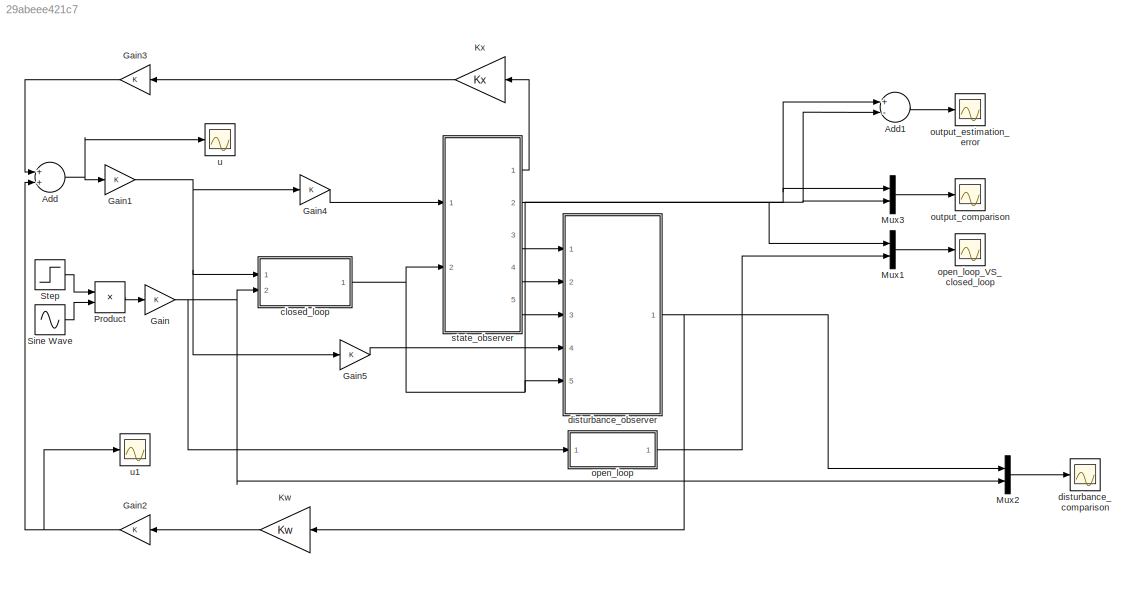
MODEL slx_29abeee421c7
KIND model
CONFIG AbsTol = auto
CONFIG FixedStep = 1e-4
CONFIG MaxStep = 1e-3
CONFIG MinStep = auto
CONFIG RelTol = 1e-3
CONFIG SampleTimeConstraint = Unconstrained
CONFIG Solver = ode45
CONFIG SolverMode = Auto
CONFIG SolverName = ode45
CONFIG StartTime = 0.0
CONFIG StopTime = 10
BLOCK [Sum] Add
  InputSameDT = off
  OutDataTypeStr = Inherit: Inherit via internal rule
  Ports = [2, 1]
  SaturateOnIntegerOverflow = off
BLOCK [Sum] Add1
  InputSameDT = off
  Inputs = +-
  OutDataTypeStr = Inherit: Inherit via internal rule
  Ports = [2, 1]
  SaturateOnIntegerOverflow = off
BLOCK [Gain] Gain
  OutDataTypeStr = Inherit: Inherit via internal rule
  ParamDataTypeStr = Inherit: Inherit via internal rule
  SaturateOnIntegerOverflow = off
BLOCK [Gain] Gain1
  OutDataTypeStr = Inherit: Inherit via internal rule
  ParamDataTypeStr = Inherit: Inherit via internal rule
  SaturateOnIntegerOverflow = off
BLOCK [Gain] Gain2
  OutDataTypeStr = Inherit: Inherit via internal rule
  ParamDataTypeStr = Inherit: Inherit via internal rule
  SaturateOnIntegerOverflow = off
BLOCK [Gain] Gain3
  OutDataTypeStr = Inherit: Inherit via internal rule
  ParamDataTypeStr = Inherit: Inherit via internal rule
  SaturateOnIntegerOverflow = off
BLOCK [Gain] Gain4
  OutDataTypeStr = Inherit: Inherit via internal rule
  ParamDataTypeStr = Inherit: Inherit via internal rule
  SaturateOnIntegerOverflow = off
BLOCK [Gain] Gain5
  OutDataTypeStr = Inherit: Inherit via internal rule
  ParamDataTypeStr = Inherit: Inherit via internal rule
  SaturateOnIntegerOverflow = off
BLOCK [Gain] Kw
  Gain = Kw
  Multiplication = Matrix(K*u)
  OutDataTypeStr = Inherit: Inherit via internal rule
  ParamDataTypeStr = Inherit: Inherit via internal rule
  SaturateOnIntegerOverflow = off
BLOCK [Gain] Kx
  Gain = Kx
  Multiplication = Matrix(K*u)
  OutDataTypeStr = Inherit: Inherit via internal rule
  ParamDataTypeStr = Inherit: Inherit via internal rule
  SaturateOnIntegerOverflow = off
BLOCK [Mux] Mux1
  DisplayOption = bar
  Inputs = 2
  Ports = [2, 1]
BLOCK [Mux] Mux2
  DisplayOption = bar
  Inputs = 2
  Ports = [2, 1]
BLOCK [Mux] Mux3
  DisplayOption = bar
  Inputs = 2
  Ports = [2, 1]
BLOCK [Product] Product
  InputSameDT = off
  OutDataTypeStr = Inherit: Inherit via internal rule
  Ports = [2, 1]
  RndMeth = Floor
  SaturateOnIntegerOverflow = off
BLOCK [Sin] Sine Wave
  Frequency = 10
  Ports = [0, 1]
  SampleTime = 0
BLOCK [Step] Step
  After = 0
  Before = 8
  SampleTime = 0
  Time = 5
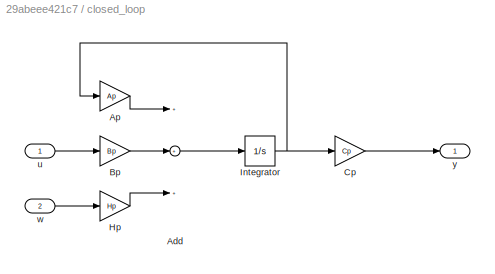
BLOCK [SubSystem] closed_loop
  Ports = [2, 1]
  RequestExecContextInheritance = off
BLOCK [Sum] closed_loop/Add
  InputSameDT = off
  Inputs = +++
  OutDataTypeStr = Inherit: Inherit via internal rule
  Ports = [3, 1]
  SaturateOnIntegerOverflow = off
BLOCK [Gain] closed_loop/Ap
  Gain = Ap
  Multiplication = Matrix(K*u)
  OutDataTypeStr = Inherit: Inherit via internal rule
  ParamDataTypeStr = Inherit: Inherit via internal rule
  SaturateOnIntegerOverflow = off
BLOCK [Gain] closed_loop/Bp
  Gain = Bp
  Multiplication = Matrix(K*u)
  OutDataTypeStr = Inherit: Inherit via internal rule
  ParamDataTypeStr = Inherit: Inherit via internal rule
  SaturateOnIntegerOverflow = off
BLOCK [Gain] closed_loop/Cp
  Gain = Cp
  Multiplication = Matrix(K*u)
  OutDataTypeStr = Inherit: Inherit via internal rule
  ParamDataTypeStr = Inherit: Inherit via internal rule
  SaturateOnIntegerOverflow = off
BLOCK [Gain] closed_loop/Hp
  Gain = Hp
  Multiplication = Matrix(K*u)
  OutDataTypeStr = Inherit: Inherit via internal rule
  ParamDataTypeStr = Inherit: Inherit via internal rule
  SaturateOnIntegerOverflow = off
BLOCK [Integrator] closed_loop/Integrator
  Ports = [1, 1]
BLOCK [Inport] closed_loop/u
  IconDisplay = Port number
BLOCK [Inport] closed_loop/w
  IconDisplay = Port number
  Port = 2
BLOCK [Outport] closed_loop/y
  IconDisplay = Port number
BLOCK [Scope] disturbance_comparison
  Floating = off
  LimitDataPoints = off
  NumInputPorts = 1
  Ports = [1]
  YMax = 15
  YMin = -15
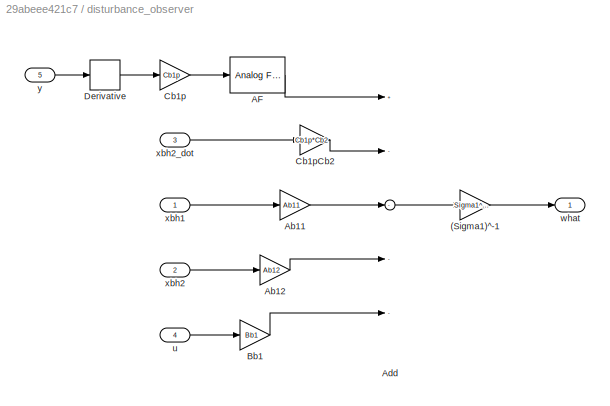
BLOCK [SubSystem] disturbance_observer
  Ports = [5, 1]
  RequestExecContextInheritance = off
BLOCK [Gain] disturbance_observer/(Sigma1)^-1
  Gain = Sigma1^-1
  Multiplication = Matrix(K*u)
  OutDataTypeStr = Inherit: Inherit via internal rule
  ParamDataTypeStr = Inherit: Inherit via internal rule
  SaturateOnIntegerOverflow = off
BLOCK [Reference] disturbance_observer/AF  REF=dsparch4/Analog
Filter Design
  N = 2
  Ports = [1, 1]
  Rp = 2
  Rs = 40
  SourceBlock = dsparch4/Analog\nFilter Design
  SourceType = Analog Filter Design
  Whi = 80
  Wlo = 30
  filttype = Lowpass
  method = Butterworth
BLOCK [Gain] disturbance_observer/Ab11
  Gain = Ab11
  Multiplication = Matrix(K*u)
  OutDataTypeStr = Inherit: Inherit via internal rule
  ParamDataTypeStr = Inherit: Inherit via internal rule
  SaturateOnIntegerOverflow = off
BLOCK [Gain] disturbance_observer/Ab12
  Gain = Ab12
  Multiplication = Matrix(K*u)
  OutDataTypeStr = Inherit: Inherit via internal rule
  ParamDataTypeStr = Inherit: Inherit via internal rule
  SaturateOnIntegerOverflow = off
BLOCK [Sum] disturbance_observer/Add
  InputSameDT = off
  Inputs = +----
  OutDataTypeStr = Inherit: Inherit via internal rule
  Ports = [5, 1]
  SaturateOnIntegerOverflow = off
BLOCK [Gain] disturbance_observer/Bb1
  Gain = Bb1
  Multiplication = Matrix(K*u)
  OutDataTypeStr = Inherit: Inherit via internal rule
  ParamDataTypeStr = Inherit: Inherit via internal rule
  SaturateOnIntegerOverflow = off
BLOCK [Gain] disturbance_observer/Cb1p
  Gain = Cb1p
  Multiplication = Matrix(K*u)
  OutDataTypeStr = Inherit: Inherit via internal rule
  ParamDataTypeStr = Inherit: Inherit via internal rule
  SaturateOnIntegerOverflow = off
BLOCK [Gain] disturbance_observer/Cb1pCb2
  Gain = Cb1p*Cb2
  Multiplication = Matrix(K*u)
  OutDataTypeStr = Inherit: Inherit via internal rule
  ParamDataTypeStr = Inherit: Inherit via internal rule
  SaturateOnIntegerOverflow = off
BLOCK [Derivative] disturbance_observer/Derivative
BLOCK [Inport] disturbance_observer/u
  IconDisplay = Port number
  Port = 4
BLOCK [Outport] disturbance_observer/what
  IconDisplay = Port number
BLOCK [Inport] disturbance_observer/xbh1
  IconDisplay = Port number
BLOCK [Inport] disturbance_observer/xbh2
  IconDisplay = Port number
  Port = 2
BLOCK [Inport] disturbance_observer/xbh2_dot
  IconDisplay = Port number
  Port = 3
BLOCK [Inport] disturbance_observer/y
  IconDisplay = Port number
  Port = 5
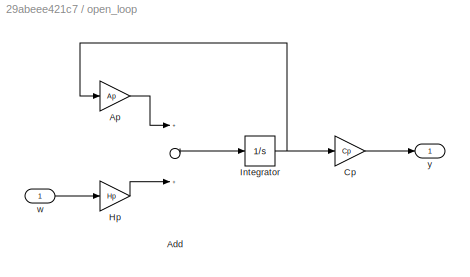
BLOCK [SubSystem] open_loop
  Ports = [1, 1]
  RequestExecContextInheritance = off
BLOCK [Sum] open_loop/Add
  InputSameDT = off
  OutDataTypeStr = Inherit: Inherit via internal rule
  Ports = [2, 1]
  SaturateOnIntegerOverflow = off
BLOCK [Gain] open_loop/Ap
  Gain = Ap
  Multiplication = Matrix(K*u)
  OutDataTypeStr = Inherit: Inherit via internal rule
  ParamDataTypeStr = Inherit: Inherit via internal rule
  SaturateOnIntegerOverflow = off
BLOCK [Gain] open_loop/Cp
  Gain = Cp
  Multiplication = Matrix(K*u)
  OutDataTypeStr = Inherit: Inherit via internal rule
  ParamDataTypeStr = Inherit: Inherit via internal rule
  SaturateOnIntegerOverflow = off
BLOCK [Gain] open_loop/Hp
  Gain = Hp
  Multiplication = Matrix(K*u)
  OutDataTypeStr = Inherit: Inherit via internal rule
  ParamDataTypeStr = Inherit: Inherit via internal rule
  SaturateOnIntegerOverflow = off
BLOCK [Integrator] open_loop/Integrator
  Ports = [1, 1]
BLOCK [Inport] open_loop/w
  IconDisplay = Port number
BLOCK [Outport] open_loop/y
  IconDisplay = Port number
BLOCK [Scope] open_loop_VS_closed_loop
  Floating = off
  LegendLocations = 0.91492     0.85114     0.12157     0.14904
  LimitDataPoints = off
  NumInputPorts = 1
  Ports = [1]
  SaveName = ScopeData4
  ShowLegends = on
  YMax = 3e+10
  YMin = -2.5e+09
BLOCK [Scope] output_comparison
  Floating = off
  LimitDataPoints = off
  NumInputPorts = 1
  Ports = [1]
  SaveName = ScopeData1
  YMax = -2.1684e-19
  YMin = -0.0024
BLOCK [Scope] output_estimation_error
  Floating = off
  LimitDataPoints = off
  NumInputPorts = 1
  Ports = [1]
  SaveName = ScopeData3
  YMax = -2.1684e-19
  YMin = -0.0024
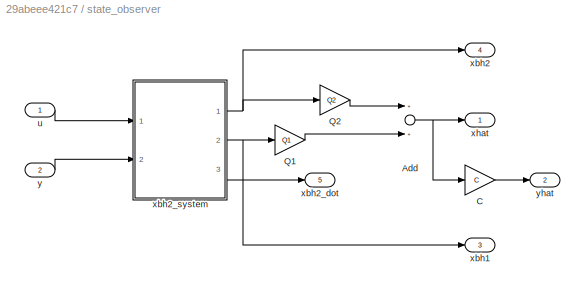
BLOCK [SubSystem] state_observer
  Ports = [2, 5]
  RequestExecContextInheritance = off
BLOCK [Sum] state_observer/Add
  InputSameDT = off
  OutDataTypeStr = Inherit: Inherit via internal rule
  Ports = [2, 1]
  SaturateOnIntegerOverflow = off
BLOCK [Gain] state_observer/C
  Gain = C
  Multiplication = Matrix(K*u)
  OutDataTypeStr = Inherit: Inherit via internal rule
  ParamDataTypeStr = Inherit: Inherit via internal rule
  SaturateOnIntegerOverflow = off
BLOCK [Gain] state_observer/Q1
  Gain = Q1
  Multiplication = Matrix(K*u)
  OutDataTypeStr = Inherit: Inherit via internal rule
  ParamDataTypeStr = Inherit: Inherit via internal rule
  SaturateOnIntegerOverflow = off
BLOCK [Gain] state_observer/Q2
  Gain = Q2
  Multiplication = Matrix(K*u)
  OutDataTypeStr = Inherit: Inherit via internal rule
  ParamDataTypeStr = Inherit: Inherit via internal rule
  SaturateOnIntegerOverflow = off
BLOCK [Inport] state_observer/u
  IconDisplay = Port number
BLOCK [Outport] state_observer/xbh1
  IconDisplay = Port number
  Port = 3
BLOCK [Outport] state_observer/xbh2
  IconDisplay = Port number
  Port = 4
BLOCK [Outport] state_observer/xbh2_dot
  IconDisplay = Port number
  Port = 5
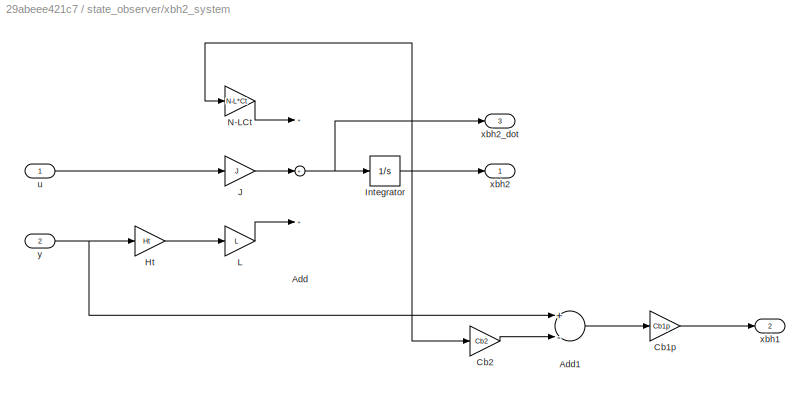
BLOCK [SubSystem] state_observer/xbh2_system
  Ports = [2, 3]
  RequestExecContextInheritance = off
BLOCK [Sum] state_observer/xbh2_system/Add
  InputSameDT = off
  Inputs = +++
  OutDataTypeStr = Inherit: Inherit via internal rule
  Ports = [3, 1]
  SaturateOnIntegerOverflow = off
BLOCK [Sum] state_observer/xbh2_system/Add1
  InputSameDT = off
  Inputs = +-
  OutDataTypeStr = Inherit: Inherit via internal rule
  Ports = [2, 1]
  SaturateOnIntegerOverflow = off
BLOCK [Gain] state_observer/xbh2_system/Cb1p
  Gain = Cb1p
  Multiplication = Matrix(K*u)
  OutDataTypeStr = Inherit: Inherit via internal rule
  ParamDataTypeStr = Inherit: Inherit via internal rule
  SaturateOnIntegerOverflow = off
BLOCK [Gain] state_observer/xbh2_system/Cb2
  Gain = Cb2
  Multiplication = Matrix(K*u)
  OutDataTypeStr = Inherit: Inherit via internal rule
  ParamDataTypeStr = Inherit: Inherit via internal rule
  SaturateOnIntegerOverflow = off
BLOCK [Gain] state_observer/xbh2_system/Ht
  Gain = Ht
  Multiplication = Matrix(K*u)
  OutDataTypeStr = Inherit: Inherit via internal rule
  ParamDataTypeStr = Inherit: Inherit via internal rule
  SaturateOnIntegerOverflow = off
BLOCK [Integrator] state_observer/xbh2_system/Integrator
  Ports = [1, 1]
BLOCK [Gain] state_observer/xbh2_system/J
  Gain = J
  Multiplication = Matrix(K*u)
  OutDataTypeStr = Inherit: Inherit via internal rule
  ParamDataTypeStr = Inherit: Inherit via internal rule
  SaturateOnIntegerOverflow = off
BLOCK [Gain] state_observer/xbh2_system/L
  Gain = L
  Multiplication = Matrix(K*u)
  OutDataTypeStr = Inherit: Inherit via internal rule
  ParamDataTypeStr = Inherit: Inherit via internal rule
  SaturateOnIntegerOverflow = off
BLOCK [Gain] state_observer/xbh2_system/N-LCt
  Gain = N-L*Ct
  Multiplication = Matrix(K*u)
  OutDataTypeStr = Inherit: Inherit via internal rule
  ParamDataTypeStr = Inherit: Inherit via internal rule
  SaturateOnIntegerOverflow = off
BLOCK [Inport] state_observer/xbh2_system/u
  IconDisplay = Port number
BLOCK [Outport] state_observer/xbh2_system/xbh1
  IconDisplay = Port number
  Port = 2
BLOCK [Outport] state_observer/xbh2_system/xbh2
  IconDisplay = Port number
BLOCK [Outport] state_observer/xbh2_system/xbh2_dot
  IconDisplay = Port number
  Port = 3
BLOCK [Inport] state_observer/xbh2_system/y
  IconDisplay = Port number
  Port = 2
BLOCK [Outport] state_observer/xhat
  IconDisplay = Port number
BLOCK [Inport] state_observer/y
  IconDisplay = Port number
  Port = 2
BLOCK [Outport] state_observer/yhat
  IconDisplay = Port number
  Port = 2
BLOCK [Scope] u
  Floating = off
  LimitDataPoints = off
  NumInputPorts = 1
  Ports = [1]
  SaveName = ScopeData2
BLOCK [Scope] u1
  Floating = off
  LimitDataPoints = off
  NumInputPorts = 1
  Ports = [1]
  SaveName = ScopeData5
  YMax = 8.5e+33
  YMin = -2.5e+33
LINE Add1:1 -> output_estimation_error:1
NET Add:1 -> Gain1:1, u:1
NET Gain1:1 -> Gain4:1, Gain5:1, closed_loop:1
NET Gain2:1 -> Add:2, u1:1
LINE Gain3:1 -> Add:1
LINE Gain4:1 -> state_observer:1
LINE Gain5:1 -> disturbance_observer:4
NET Gain:1 -> Mux2:2, closed_loop:2, open_loop:1
LINE Kw:1 -> Gain2:1
LINE Kx:1 -> Gain3:1
LINE Mux1:1 -> open_loop_VS_closed_loop:1
LINE Mux2:1 -> disturbance_comparison:1
LINE Mux3:1 -> output_comparison:1
LINE Product:1 -> Gain:1
LINE Sine Wave:1 -> Product:2
LINE Step:1 -> Product:1
LINE closed_loop/Add:1 -> closed_loop/Integrator:1
LINE closed_loop/Ap:1 -> closed_loop/Add:1
LINE closed_loop/Bp:1 -> closed_loop/Add:2
LINE closed_loop/Cp:1 -> closed_loop/y:1
LINE closed_loop/Hp:1 -> closed_loop/Add:3
NET closed_loop/Integrator:1 -> closed_loop/Ap:1, closed_loop/Cp:1
LINE closed_loop/u:1 -> closed_loop/Bp:1
LINE closed_loop/w:1 -> closed_loop/Hp:1
NET closed_loop:1 -> Add1:2, Mux1:1, Mux3:2, disturbance_observer:5, state_observer:2
LINE disturbance_observer/(Sigma1)^-1:1 -> disturbance_observer/what:1
LINE disturbance_observer/AF:1 -> disturbance_observer/Add:1
LINE disturbance_observer/Ab11:1 -> disturbance_observer/Add:3
LINE disturbance_observer/Ab12:1 -> disturbance_observer/Add:4
LINE disturbance_observer/Add:1 -> disturbance_observer/(Sigma1)^-1:1
LINE disturbance_observer/Bb1:1 -> disturbance_observer/Add:5
LINE disturbance_observer/Cb1p:1 -> disturbance_observer/AF:1
LINE disturbance_observer/Cb1pCb2:1 -> disturbance_observer/Add:2
LINE disturbance_observer/Derivative:1 -> disturbance_observer/Cb1p:1
LINE disturbance_observer/u:1 -> disturbance_observer/Bb1:1
LINE disturbance_observer/xbh1:1 -> disturbance_observer/Ab11:1
LINE disturbance_observer/xbh2:1 -> disturbance_observer/Ab12:1
LINE disturbance_observer/xbh2_dot:1 -> disturbance_observer/Cb1pCb2:1
LINE disturbance_observer/y:1 -> disturbance_observer/Derivative:1
NET disturbance_observer:1 -> Kw:1, Mux2:1
LINE open_loop/Add:1 -> open_loop/Integrator:1
LINE open_loop/Ap:1 -> open_loop/Add:1
LINE open_loop/Cp:1 -> open_loop/y:1
LINE open_loop/Hp:1 -> open_loop/Add:2
NET open_loop/Integrator:1 -> open_loop/Ap:1, open_loop/Cp:1
LINE open_loop/w:1 -> open_loop/Hp:1
LINE open_loop:1 -> Mux1:2
NET state_observer/Add:1 -> state_observer/C:1, state_observer/xhat:1
LINE state_observer/C:1 -> state_observer/yhat:1
LINE state_observer/Q1:1 -> state_observer/Add:2
LINE state_observer/Q2:1 -> state_observer/Add:1
LINE state_observer/u:1 -> state_observer/xbh2_system:1
LINE state_observer/xbh2_system/Add1:1 -> state_observer/xbh2_system/Cb1p:1
NET state_observer/xbh2_system/Add:1 -> state_observer/xbh2_system/Integrator:1, state_observer/xbh2_system/xbh2_dot:1
LINE state_observer/xbh2_system/Cb1p:1 -> state_observer/xbh2_system/xbh1:1
LINE state_observer/xbh2_system/Cb2:1 -> state_observer/xbh2_system/Add1:2
LINE state_observer/xbh2_system/Ht:1 -> state_observer/xbh2_system/L:1
NET state_observer/xbh2_system/Integrator:1 -> state_observer/xbh2_system/Cb2:1, state_observer/xbh2_system/N-LCt:1, state_observer/xbh2_system/xbh2:1
LINE state_observer/xbh2_system/J:1 -> state_observer/xbh2_system/Add:2
LINE state_observer/xbh2_system/L:1 -> state_observer/xbh2_system/Add:3
LINE state_observer/xbh2_system/N-LCt:1 -> state_observer/xbh2_system/Add:1
LINE state_observer/xbh2_system/u:1 -> state_observer/xbh2_system/J:1
NET state_observer/xbh2_system/y:1 -> state_observer/xbh2_system/Add1:1, state_observer/xbh2_system/Ht:1
NET state_observer/xbh2_system:1 -> state_observer/Q2:1, state_observer/xbh2:1
NET state_observer/xbh2_system:2 -> state_observer/Q1:1, state_observer/xbh1:1
LINE state_observer/xbh2_system:3 -> state_observer/xbh2_dot:1
LINE state_observer/y:1 -> state_observer/xbh2_system:2
LINE state_observer:1 -> Kx:1
NET state_observer:2 -> Add1:1, Mux3:1
LINE state_observer:3 -> disturbance_observer:1
LINE state_observer:4 -> disturbance_observer:2
LINE state_observer:5 -> disturbance_observer:3
note: NET lines group one-source signal fan-out (src -> all destinations, sorted); 1:1 wires keep LINE
